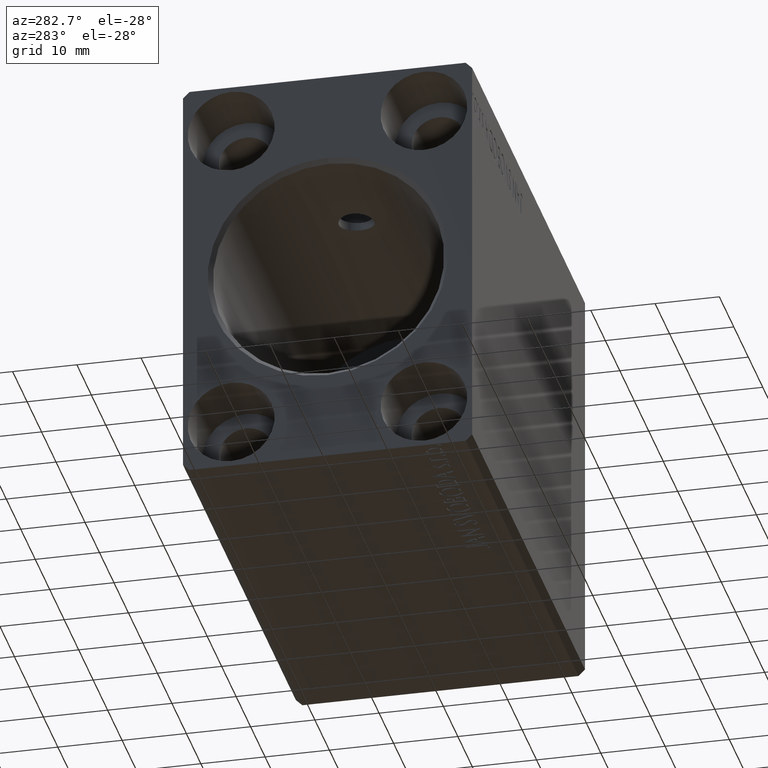
[diagram: clean part render]
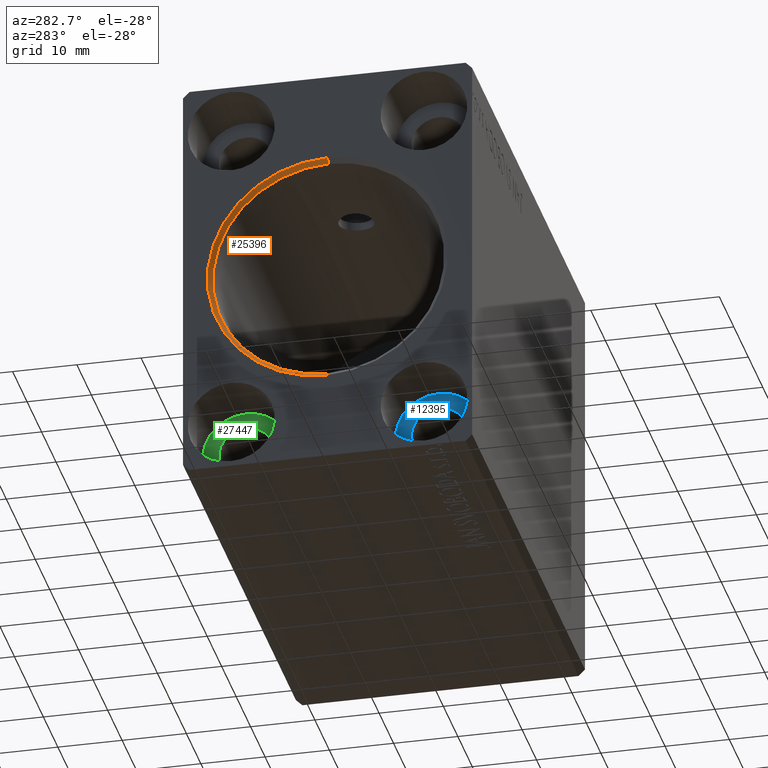
[diagram: same view with three faces highlighted in distinct colors, each labeled with its STEP entity id]
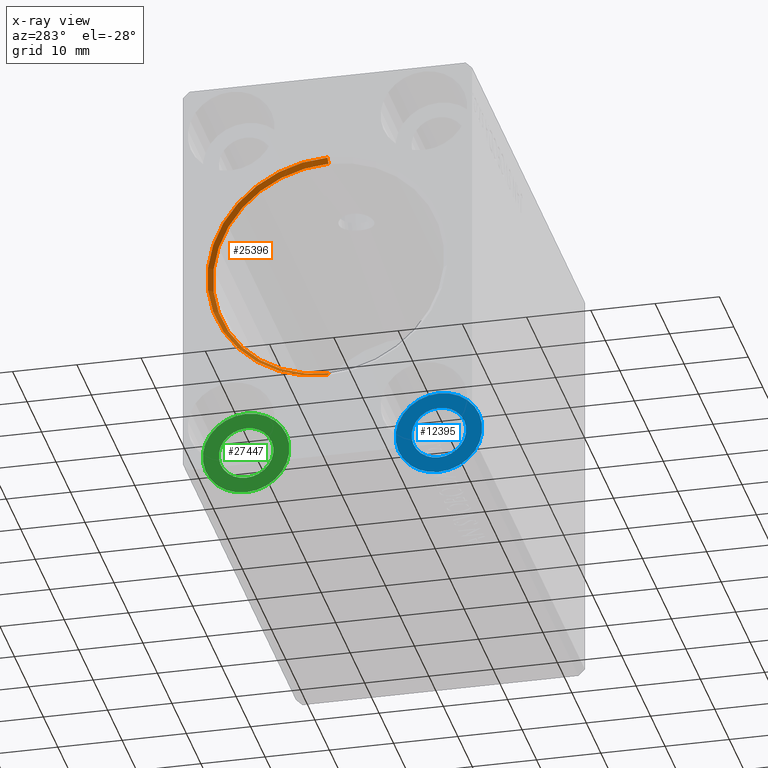
[diagram: x-ray of the same camera — body ghosted, the three highlighted faces saturated]
A machine part, auxiliary view with three faces highlighted in distinct colors.
The next image is the same camera in x-ray (body ghosted, the three faces saturated) — at least one of them is partly hidden behind the body in this view.
Their STEP definitions:

[orange] entity #25396 — the highlighted conical surface has half-angle 45 deg.
#521 = ORIENTED_EDGE ( 'NONE', *, *, #13542, .F. ) ;
#3391 = DIRECTION ( 'NONE',  ( 0.000000000000000000, 0.000000000000000000, -1.000000000000000000 ) ) ;
#5122 = EDGE_CURVE ( 'NONE', #35474, #36451, #35090, .T. ) ;
#5517 = CARTESIAN_POINT ( 'NONE',  ( 0.7000000000000963229, 0.000000000000000000, 18.00000000000000000 ) ) ;
#8157 = ORIENTED_EDGE ( 'NONE', *, *, #38859, .T. ) ;
#9005 = VECTOR ( 'NONE', #16015, 999.9999999999998863 ) ;
#9486 = DIRECTION ( 'NONE',  ( -1.000000000000000000, 0.000000000000000000, 0.000000000000000000 ) ) ;
#9941 = EDGE_LOOP ( 'NONE', ( #32201, #521, #8157, #38358 ) ) ;
#10347 = CARTESIAN_POINT ( 'NONE',  ( 0.000000000000000000, 0.000000000000000000, 0.000000000000000000 ) ) ;
#11638 = EDGE_CURVE ( 'NONE', #36451, #24127, #13402, .T. ) ;
#12291 = DIRECTION ( 'NONE',  ( 0.000000000000000000, 0.000000000000000000, 1.000000000000000000 ) ) ;
#13402 = CIRCLE ( 'NONE', #37388, 18.70000000000008811 ) ;
#13542 = EDGE_CURVE ( 'NONE', #28291, #35474, #23045, .T. ) ;
#13568 = DIRECTION ( 'NONE',  ( 0.000000000000000000, 0.000000000000000000, -1.000000000000000000 ) ) ;
#14938 = DIRECTION ( 'NONE',  ( -0.7071067811865510144, 8.659560562354890950E-17, -0.7071067811865441310 ) ) ;
#16015 = DIRECTION ( 'NONE',  ( -0.7071067811865510144, 0.000000000000000000, 0.7071067811865441310 ) ) ;
#18281 = AXIS2_PLACEMENT_3D ( 'NONE', #36012, #32801, #3391 ) ;
#18522 = FACE_OUTER_BOUND ( 'NONE', #9941, .T. ) ;
#19652 = CARTESIAN_POINT ( 'NONE',  ( 0.000000000000000000, 0.000000000000000000, 18.70000000000008811 ) ) ;
#23045 = CIRCLE ( 'NONE', #18281, 18.00000000000000000 ) ;
#24127 = VERTEX_POINT ( 'NONE', #19652 ) ;
#25275 = CONICAL_SURFACE ( 'NONE', #40325, 18.00000000000000000, 0.7853981633974433940 ) ;
#25396 = ADVANCED_FACE ( 'NONE', ( #18522 ), #25275, .F. ) ;
#28291 = VERTEX_POINT ( 'NONE', #34040 ) ;
#32117 = LINE ( 'NONE', #5517, #9005 ) ;
#32201 = ORIENTED_EDGE ( 'NONE', *, *, #5122, .F. ) ;
#32650 = CARTESIAN_POINT ( 'NONE',  ( 0.000000000000000000, 2.290089514405561154E-15, -18.70000000000008811 ) ) ;
#32801 = DIRECTION ( 'NONE',  ( -1.000000000000000000, 0.000000000000000000, 0.000000000000000000 ) ) ;
#33309 = DIRECTION ( 'NONE',  ( 1.000000000000000000, 0.000000000000000000, 0.000000000000000000 ) ) ;
#34040 = CARTESIAN_POINT ( 'NONE',  ( 0.7000000000000963229, 0.000000000000000000, 18.00000000000000000 ) ) ;
#35090 = LINE ( 'NONE', #37892, #35219 ) ;
#35219 = VECTOR ( 'NONE', #14938, 999.9999999999998863 ) ;
#35474 = VERTEX_POINT ( 'NONE', #38602 ) ;
#36012 = CARTESIAN_POINT ( 'NONE',  ( 0.7000000000000963229, 0.000000000000000000, 0.000000000000000000 ) ) ;
#36451 = VERTEX_POINT ( 'NONE', #32650 ) ;
#37388 = AXIS2_PLACEMENT_3D ( 'NONE', #10347, #33309, #13568 ) ;
#37892 = CARTESIAN_POINT ( 'NONE',  ( 0.7000000000000963229, 2.204364238465235428E-15, -18.00000000000000000 ) ) ;
#38358 = ORIENTED_EDGE ( 'NONE', *, *, #11638, .F. ) ;
#38602 = CARTESIAN_POINT ( 'NONE',  ( 0.7000000000000963229, 2.204364238465235033E-15, -18.00000000000000000 ) ) ;
#38859 = EDGE_CURVE ( 'NONE', #28291, #24127, #32117, .T. ) ;
#40325 = AXIS2_PLACEMENT_3D ( 'NONE', #41494, #9486, #12291 ) ;
#41494 = CARTESIAN_POINT ( 'NONE',  ( 0.7000000000000963229, 0.000000000000000000, 0.000000000000000000 ) ) ;

[blue] entity #12395 — the highlighted planar face has unit normal (1, 0, -0).
#4140 = CARTESIAN_POINT ( 'NONE',  ( 10.33000000000000540, -15.00000000000000000, -25.00000000000000000 ) ) ;
#4686 = VERTEX_POINT ( 'NONE', #16497 ) ;
#5170 = CARTESIAN_POINT ( 'NONE',  ( 10.33000000000000540, -15.00000000000000000, -29.25000000000000000 ) ) ;
#5373 = AXIS2_PLACEMENT_3D ( 'NONE', #28521, #18222, #31315 ) ;
#6184 = CARTESIAN_POINT ( 'NONE',  ( 10.33000000000000007, -15.00000000000000000, -25.00000000000000000 ) ) ;
#6497 = PLANE ( 'NONE',  #29212 ) ;
#6884 = VERTEX_POINT ( 'NONE', #33036 ) ;
#8989 = DIRECTION ( 'NONE',  ( 0.000000000000000000, 0.000000000000000000, -1.000000000000000000 ) ) ;
#11183 = ORIENTED_EDGE ( 'NONE', *, *, #25910, .T. ) ;
#12395 = ADVANCED_FACE ( 'NONE', ( #35898, #29673 ), #6497, .F. ) ;
#13552 = AXIS2_PLACEMENT_3D ( 'NONE', #6184, #41615, #8989 ) ;
#16497 = CARTESIAN_POINT ( 'NONE',  ( 10.33000000000000540, -15.00000000000000000, -20.75000000000000355 ) ) ;
#17043 = VERTEX_POINT ( 'NONE', #34412 ) ;
#17793 = VERTEX_POINT ( 'NONE', #5170 ) ;
#18154 = EDGE_CURVE ( 'NONE', #6884, #17043, #23842, .T. ) ;
#18222 = DIRECTION ( 'NONE',  ( 1.000000000000000000, -0.000000000000000000, -0.000000000000000000 ) ) ;
#19290 = CIRCLE ( 'NONE', #24785, 6.749999999999999112 ) ;
#19599 = DIRECTION ( 'NONE',  ( 1.000000000000000000, -0.000000000000000000, -0.000000000000000000 ) ) ;
#20004 = DIRECTION ( 'NONE',  ( -0.000000000000000000, 0.000000000000000000, -1.000000000000000000 ) ) ;
#20068 = CARTESIAN_POINT ( 'NONE',  ( 10.33000000000000007, -15.00000000000000000, -25.00000000000000000 ) ) ;
#22608 = CARTESIAN_POINT ( 'NONE',  ( 10.33000000000000007, -15.00000000000000000, -25.00000000000000000 ) ) ;
#22742 = CIRCLE ( 'NONE', #26855, 4.249999999999996447 ) ;
#23245 = ORIENTED_EDGE ( 'NONE', *, *, #39754, .F. ) ;
#23842 = CIRCLE ( 'NONE', #13552, 6.749999999999999112 ) ;
#24785 = AXIS2_PLACEMENT_3D ( 'NONE', #20068, #29955, #35964 ) ;
#25910 = EDGE_CURVE ( 'NONE', #4686, #17793, #36211, .T. ) ;
#26855 = AXIS2_PLACEMENT_3D ( 'NONE', #4140, #19599, #40200 ) ;
#28521 = CARTESIAN_POINT ( 'NONE',  ( 10.33000000000000540, -15.00000000000000000, -25.00000000000000000 ) ) ;
#29212 = AXIS2_PLACEMENT_3D ( 'NONE', #22608, #39124, #20004 ) ;
#29264 = ORIENTED_EDGE ( 'NONE', *, *, #18154, .F. ) ;
#29673 = FACE_OUTER_BOUND ( 'NONE', #31271, .T. ) ;
#29955 = DIRECTION ( 'NONE',  ( 1.000000000000000000, -0.000000000000000000, -0.000000000000000000 ) ) ;
#31075 = EDGE_LOOP ( 'NONE', ( #11183, #41420 ) ) ;
#31271 = EDGE_LOOP ( 'NONE', ( #29264, #23245 ) ) ;
#31315 = DIRECTION ( 'NONE',  ( 0.000000000000000000, 0.000000000000000000, -1.000000000000000000 ) ) ;
#33036 = CARTESIAN_POINT ( 'NONE',  ( 10.33000000000000007, -15.00000000000000000, -18.25000000000000355 ) ) ;
#34412 = CARTESIAN_POINT ( 'NONE',  ( 10.33000000000000007, -15.00000000000000000, -31.75000000000000000 ) ) ;
#35898 = FACE_BOUND ( 'NONE', #31075, .T. ) ;
#35964 = DIRECTION ( 'NONE',  ( 0.000000000000000000, 0.000000000000000000, -1.000000000000000000 ) ) ;
#36211 = CIRCLE ( 'NONE', #5373, 4.249999999999996447 ) ;
#39124 = DIRECTION ( 'NONE',  ( 1.000000000000000000, 0.000000000000000000, -0.000000000000000000 ) ) ;
#39754 = EDGE_CURVE ( 'NONE', #17043, #6884, #19290, .T. ) ;
#40200 = DIRECTION ( 'NONE',  ( 0.000000000000000000, 0.000000000000000000, -1.000000000000000000 ) ) ;
#41247 = EDGE_CURVE ( 'NONE', #17793, #4686, #22742, .T. ) ;
#41420 = ORIENTED_EDGE ( 'NONE', *, *, #41247, .T. ) ;
#41615 = DIRECTION ( 'NONE',  ( 1.000000000000000000, -0.000000000000000000, -0.000000000000000000 ) ) ;

[green] entity #27447 — the highlighted planar face has unit normal (-1, 0, 0).
#896 = PLANE ( 'NONE',  #34877 ) ;
#2399 = CARTESIAN_POINT ( 'NONE',  ( 10.33000000000000540, 15.00000000000000000, -20.75000000000000355 ) ) ;
#2414 = CIRCLE ( 'NONE', #27771, 6.749999999999992006 ) ;
#3488 = DIRECTION ( 'NONE',  ( -1.000000000000000000, 0.000000000000000000, 0.000000000000000000 ) ) ;
#3678 = CARTESIAN_POINT ( 'NONE',  ( 10.33000000000000540, 15.00000000000000000, -25.00000000000000000 ) ) ;
#7532 = DIRECTION ( 'NONE',  ( 0.000000000000000000, 0.000000000000000000, 1.000000000000000000 ) ) ;
#8662 = AXIS2_PLACEMENT_3D ( 'NONE', #30056, #39929, #23616 ) ;
#9421 = EDGE_CURVE ( 'NONE', #16757, #34791, #2414, .T. ) ;
#10357 = FACE_BOUND ( 'NONE', #22706, .T. ) ;
#11489 = CARTESIAN_POINT ( 'NONE',  ( 10.33000000000000540, 15.00000000000000000, -25.00000000000000000 ) ) ;
#11729 = AXIS2_PLACEMENT_3D ( 'NONE', #3678, #27275, #7532 ) ;
#12329 = ORIENTED_EDGE ( 'NONE', *, *, #14146, .T. ) ;
#12406 = CIRCLE ( 'NONE', #11729, 4.249999999999996447 ) ;
#12538 = DIRECTION ( 'NONE',  ( 0.000000000000000000, 0.000000000000000000, 1.000000000000000000 ) ) ;
#13050 = VERTEX_POINT ( 'NONE', #2399 ) ;
#14146 = EDGE_CURVE ( 'NONE', #34791, #16757, #39495, .T. ) ;
#14212 = FACE_OUTER_BOUND ( 'NONE', #42077, .T. ) ;
#15151 = CARTESIAN_POINT ( 'NONE',  ( 10.33000000000000007, 15.00000000000000000, -18.25000000000001066 ) ) ;
#16757 = VERTEX_POINT ( 'NONE', #15151 ) ;
#17215 = DIRECTION ( 'NONE',  ( 0.000000000000000000, 0.000000000000000000, 1.000000000000000000 ) ) ;
#17505 = DIRECTION ( 'NONE',  ( -1.000000000000000000, 0.000000000000000000, 0.000000000000000000 ) ) ;
#20013 = CARTESIAN_POINT ( 'NONE',  ( 10.33000000000000007, 15.00000000000000000, -25.00000000000000000 ) ) ;
#21695 = EDGE_CURVE ( 'NONE', #34271, #13050, #25964, .T. ) ;
#22706 = EDGE_LOOP ( 'NONE', ( #37657, #33601 ) ) ;
#23616 = DIRECTION ( 'NONE',  ( 0.000000000000000000, 0.000000000000000000, 1.000000000000000000 ) ) ;
#25964 = CIRCLE ( 'NONE', #38889, 4.249999999999996447 ) ;
#27275 = DIRECTION ( 'NONE',  ( -1.000000000000000000, 0.000000000000000000, 0.000000000000000000 ) ) ;
#27447 = ADVANCED_FACE ( 'NONE', ( #10357, #14212 ), #896, .T. ) ;
#27771 = AXIS2_PLACEMENT_3D ( 'NONE', #20013, #29683, #12538 ) ;
#29683 = DIRECTION ( 'NONE',  ( -1.000000000000000000, 0.000000000000000000, 0.000000000000000000 ) ) ;
#29880 = ORIENTED_EDGE ( 'NONE', *, *, #9421, .T. ) ;
#30056 = CARTESIAN_POINT ( 'NONE',  ( 10.33000000000000007, 15.00000000000000000, -25.00000000000000000 ) ) ;
#31568 = CARTESIAN_POINT ( 'NONE',  ( 10.33000000000000540, 15.00000000000000000, -29.25000000000000000 ) ) ;
#32895 = CARTESIAN_POINT ( 'NONE',  ( 10.33000000000000007, 15.00000000000000000, -25.00000000000000000 ) ) ;
#33601 = ORIENTED_EDGE ( 'NONE', *, *, #21695, .F. ) ;
#34271 = VERTEX_POINT ( 'NONE', #31568 ) ;
#34791 = VERTEX_POINT ( 'NONE', #38490 ) ;
#34877 = AXIS2_PLACEMENT_3D ( 'NONE', #32895, #3488, #17215 ) ;
#37657 = ORIENTED_EDGE ( 'NONE', *, *, #38331, .F. ) ;
#38331 = EDGE_CURVE ( 'NONE', #13050, #34271, #12406, .T. ) ;
#38490 = CARTESIAN_POINT ( 'NONE',  ( 10.33000000000000007, 15.00000000000000000, -31.74999999999999289 ) ) ;
#38889 = AXIS2_PLACEMENT_3D ( 'NONE', #11489, #17505, #40473 ) ;
#39495 = CIRCLE ( 'NONE', #8662, 6.749999999999992006 ) ;
#39929 = DIRECTION ( 'NONE',  ( -1.000000000000000000, 0.000000000000000000, 0.000000000000000000 ) ) ;
#40473 = DIRECTION ( 'NONE',  ( 0.000000000000000000, 0.000000000000000000, 1.000000000000000000 ) ) ;
#42077 = EDGE_LOOP ( 'NONE', ( #29880, #12329 ) ) ;